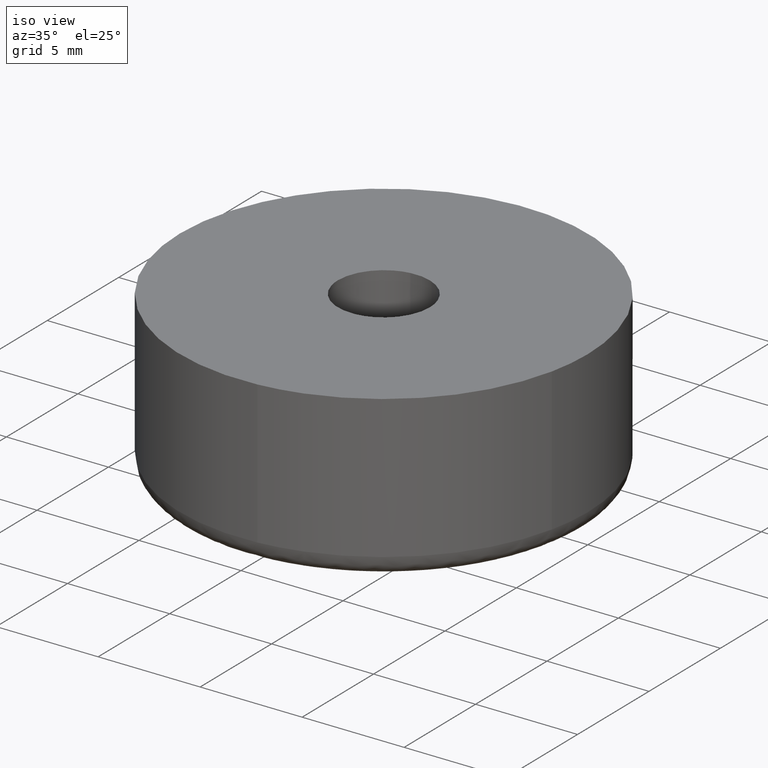
[diagram: clean part render]
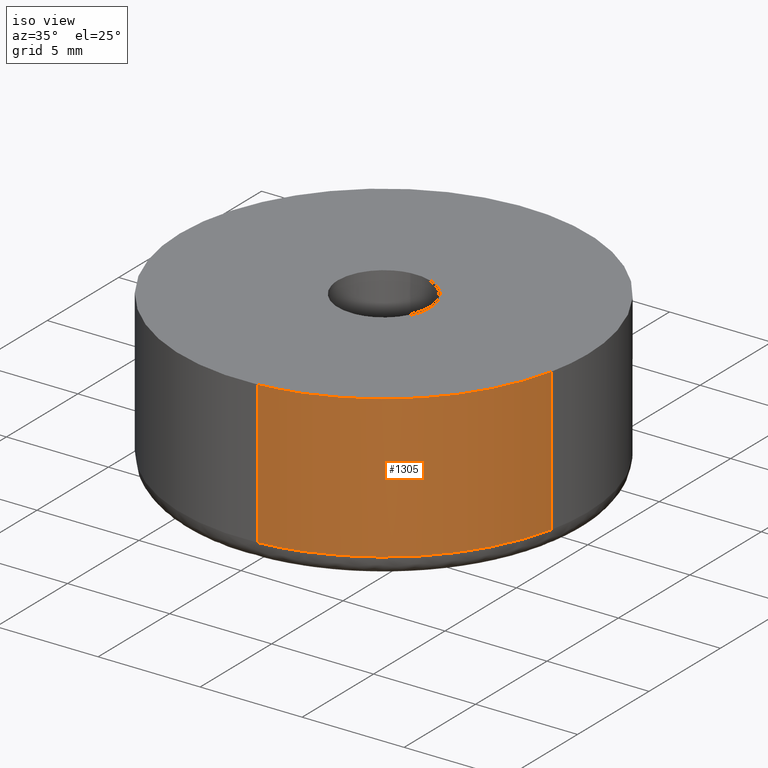
[diagram: same view with one face highlighted and labeled with its STEP entity id]
A machine part, iso view. The second image highlights one B-rep face of the part: STEP entity #1305.
In plain terms, the highlighted face is a freeform B-spline surface patch.
Its self-contained STEP definition (entity closure, byte-faithful):
#1241=CARTESIAN_POINT('',(9.773270624397938,-2.118269616413071,8.175000000000589));
#1242=CARTESIAN_POINT('',(9.766484864417761,-2.148661470704314,8.175000000000589));
#1243=CARTESIAN_POINT('',(8.149777588713580,-9.389520578355468,8.175000000000589));
#1244=CARTESIAN_POINT('',(0.756423948956647,-9.971390128962344,8.175000000000591));
#1245=CARTESIAN_POINT('',(0.728322792584790,-9.973601737932551,8.175000000000589));
#1246=CARTESIAN_POINT('',(9.773270624397938,-2.118269616413071,0.820624999971614));
#1247=CARTESIAN_POINT('',(9.766484864417761,-2.148661470704314,0.820624999971614));
#1248=CARTESIAN_POINT('',(8.149777588713580,-9.389520578355468,0.820624999971614));
#1249=CARTESIAN_POINT('',(0.756423948956647,-9.971390128962344,0.820624999971614));
#1250=CARTESIAN_POINT('',(0.728322792584790,-9.973601737932551,0.820624999971614));
#1258=(BOUNDED_SURFACE()B_SPLINE_SURFACE(2,1,((#1241,#1246),(#1242,#1247),(#1243,#1248),(#1244,#1249),(#1245,#1250)),.UNSPECIFIED.,.F.,.F.,.U.)B_SPLINE_SURFACE_WITH_KNOTS((3,1,1,3),(2,2),(0.0,0.065829388922783,13.230316627789239,13.296145906436040),(0.0,7.354375000028976),.UNSPECIFIED.)GEOMETRIC_REPRESENTATION_ITEM()RATIONAL_B_SPLINE_SURFACE(((0.907680205931852,0.907680205931852),(0.906977187955774,0.906977187955774),(0.765685424949238,0.765685424949238),(1.001171694663996,1.001171694663996),(1.002343389327992,1.002343389327992)))REPRESENTATION_ITEM('')SURFACE());
#1259=CARTESIAN_POINT('',(9.759689999604271,-2.179094103425024,0.999999999999983));
#1260=VERTEX_POINT('',#1259);
#1261=CARTESIAN_POINT('',(0.784585152188208,-9.969173794198387,1.000000000000015));
#1262=VERTEX_POINT('',#1261);
#1263=CARTESIAN_POINT('',(9.759689999604271,-2.179094103425024,0.999999999999983));
#1264=CARTESIAN_POINT('',(8.149781639381867,-9.389524574907334,1.0));
#1265=CARTESIAN_POINT('',(0.784585152188208,-9.969173794198387,1.000000000000015));
#1273=(BOUNDED_CURVE()B_SPLINE_CURVE(2,(#1263,#1264,#1265),.UNSPECIFIED.,.F.,.U.)B_SPLINE_CURVE_WITH_KNOTS((3,3),(0.537286560370751,0.736331400453952),.UNSPECIFIED.)CURVE()GEOMETRIC_REPRESENTATION_ITEM()RATIONAL_B_SPLINE_CURVE((0.925662740296602,0.762027680026814,0.969723564491107))REPRESENTATION_ITEM(''));
#1274=EDGE_CURVE('',#1260,#1262,#1273,.T.);
#1275=ORIENTED_EDGE('',*,*,#1274,.F.);
#1276=CARTESIAN_POINT('',(9.759689982042810,-2.179094182079235,7.999999999999899));
#1277=VERTEX_POINT('',#1276);
#1278=CARTESIAN_POINT('',(9.759689982042810,-2.179094182079235,7.999999999999899));
#1279=CARTESIAN_POINT('',(9.759689999604271,-2.179094103425024,0.999999999999983));
#1280=QUASI_UNIFORM_CURVE('',1,(#1278,#1279),.UNSPECIFIED.,.F.,.U.);
#1281=EDGE_CURVE('',#1277,#1260,#1280,.T.);
#1282=ORIENTED_EDGE('',*,*,#1281,.F.);
#1283=CARTESIAN_POINT('',(0.784585223780297,-9.969173788564049,7.999999999999900));
#1284=VERTEX_POINT('',#1283);
#1285=CARTESIAN_POINT('',(9.759689982042810,-2.179094182079235,7.999999999999898));
#1286=CARTESIAN_POINT('',(8.149781589379492,-9.389524525622949,7.999999999999900));
#1287=CARTESIAN_POINT('',(0.784585223780297,-9.969173788564049,7.999999999999900));
#1295=(BOUNDED_CURVE()B_SPLINE_CURVE(2,(#1285,#1286,#1287),.UNSPECIFIED.,.F.,.U.)B_SPLINE_CURVE_WITH_KNOTS((3,3),(0.537286561689504,0.736331399222893),.UNSPECIFIED.)CURVE()GEOMETRIC_REPRESENTATION_ITEM()RATIONAL_B_SPLINE_CURVE((0.925662738128303,0.762027682414940,0.969723561921979))REPRESENTATION_ITEM(''));
#1296=EDGE_CURVE('',#1277,#1284,#1295,.T.);
#1297=ORIENTED_EDGE('',*,*,#1296,.T.);
#1298=CARTESIAN_POINT('',(0.784585223780297,-9.969173788564049,7.999999999999900));
#1299=CARTESIAN_POINT('',(0.784585152188208,-9.969173794198387,1.000000000000015));
#1300=QUASI_UNIFORM_CURVE('',1,(#1298,#1299),.UNSPECIFIED.,.F.,.U.);
#1301=EDGE_CURVE('',#1284,#1262,#1300,.T.);
#1302=ORIENTED_EDGE('',*,*,#1301,.T.);
#1303=EDGE_LOOP('',(#1275,#1282,#1297,#1302));
#1304=FACE_OUTER_BOUND('',#1303,.T.);
#1305=ADVANCED_FACE('',(#1304),#1258,.T.);